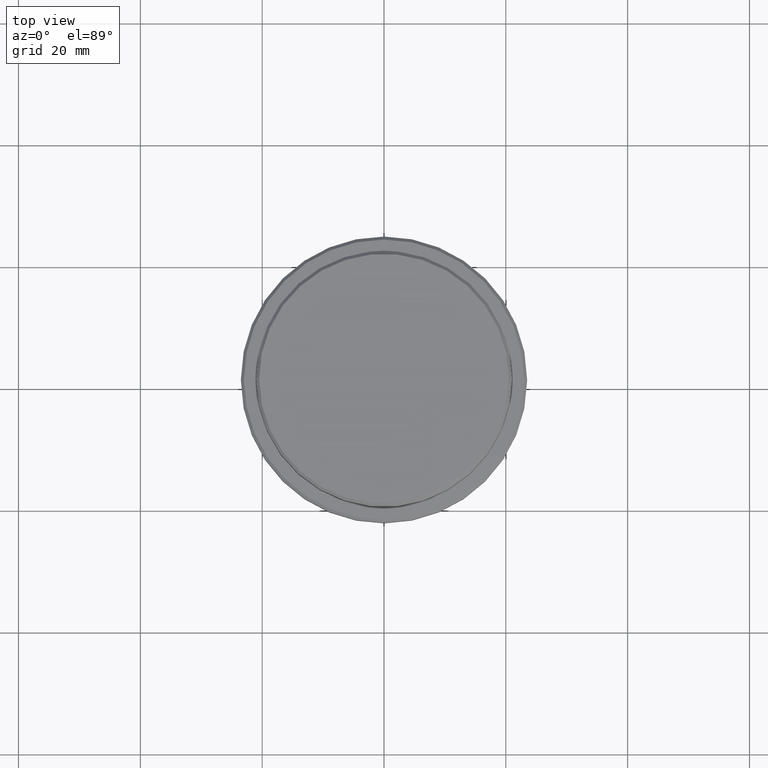
[diagram: clean part render]
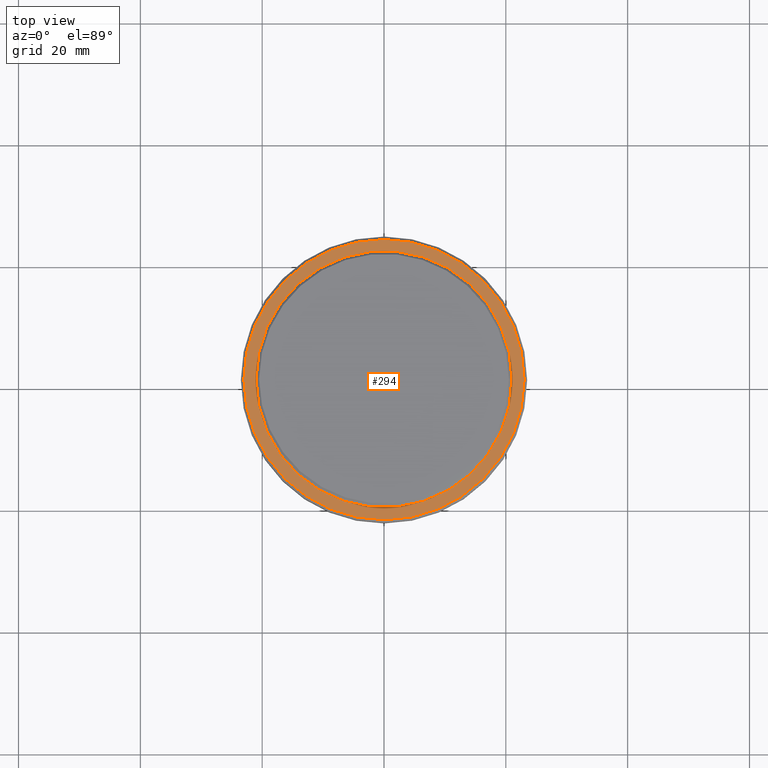
[diagram: same view with one face highlighted and labeled with its STEP entity id]
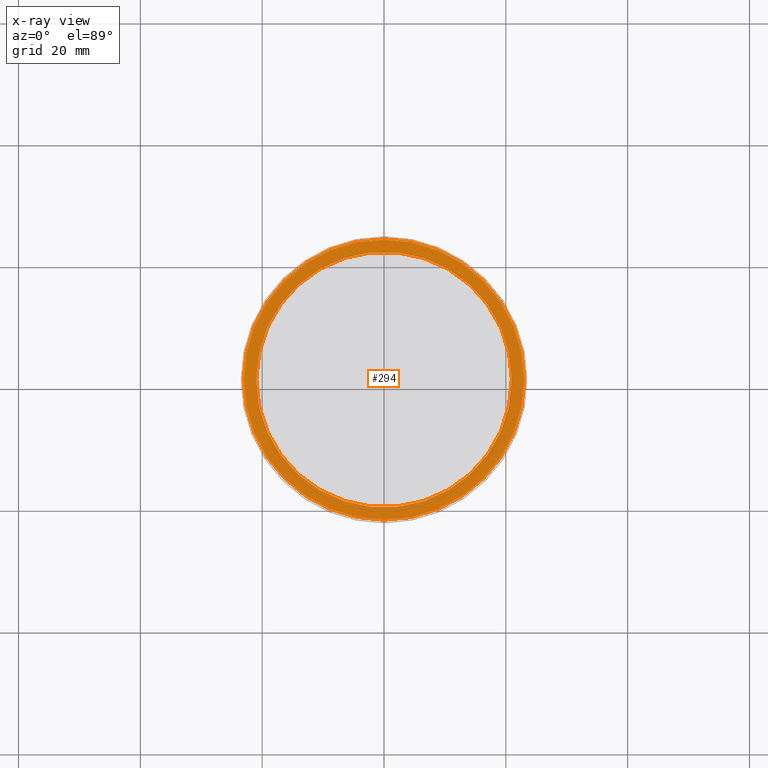
[diagram: x-ray of the same camera — body ghosted, the highlighted face saturated]
A machine part, top view. The second image highlights one B-rep face of the part: STEP entity #294.
The next image is the same camera in x-ray: the body ghosted, the highlighted face saturated — about 0% of this face is hidden behind the body in this view.
In plain terms, the highlighted planar face has unit normal (0, -0, 1).
Its self-contained STEP definition (entity closure, byte-faithful):
#1 = EDGE_CURVE ( 'NONE', #908, #1404, #927, .T. ) ;
#2 = AXIS2_PLACEMENT_3D ( 'NONE', #635, #1393, #413 ) ;
#78 = AXIS2_PLACEMENT_3D ( 'NONE', #98, #91, #528 ) ;
#91 = DIRECTION ( 'NONE',  ( -0.000000000000000000, -0.000000000000000000, 1.000000000000000000 ) ) ;
#98 = CARTESIAN_POINT ( 'NONE',  ( 0.000000000000000000, 0.000000000000000000, -9.000000000000000000 ) ) ;
#108 = CARTESIAN_POINT ( 'NONE',  ( 0.000000000000000000, 0.000000000000000000, -9.000000000000000000 ) ) ;
#132 = AXIS2_PLACEMENT_3D ( 'NONE', #108, #971, #1299 ) ;
#161 = EDGE_CURVE ( 'NONE', #1404, #908, #1109, .T. ) ;
#218 = DIRECTION ( 'NONE',  ( 0.000000000000000000, 0.000000000000000000, -1.000000000000000000 ) ) ;
#222 = CARTESIAN_POINT ( 'NONE',  ( 0.000000000000000000, 0.000000000000000000, -9.000000000000000000 ) ) ;
#275 = EDGE_CURVE ( 'NONE', #1395, #366, #688, .T. ) ;
#289 = EDGE_LOOP ( 'NONE', ( #1150, #585 ) ) ;
#294 = ADVANCED_FACE ( 'NONE', ( #1379, #398 ), #849, .T. ) ;
#316 = EDGE_LOOP ( 'NONE', ( #1170, #726 ) ) ;
#366 = VERTEX_POINT ( 'NONE', #1316 ) ;
#398 = FACE_BOUND ( 'NONE', #289, .T. ) ;
#413 = DIRECTION ( 'NONE',  ( 1.000000000000000000, 0.000000000000000000, 0.000000000000000000 ) ) ;
#507 = DIRECTION ( 'NONE',  ( 1.000000000000000000, 0.000000000000000000, 0.000000000000000000 ) ) ;
#528 = DIRECTION ( 'NONE',  ( 1.000000000000000000, 0.000000000000000000, 0.000000000000000000 ) ) ;
#532 = CARTESIAN_POINT ( 'NONE',  ( 20.99999999999999289, 0.000000000000000000, -9.000000000000000000 ) ) ;
#585 = ORIENTED_EDGE ( 'NONE', *, *, #161, .T. ) ;
#635 = CARTESIAN_POINT ( 'NONE',  ( 0.000000000000000000, 20.49999999999999645, -9.000000000000000000 ) ) ;
#688 = CIRCLE ( 'NONE', #78, 22.99999999999999645 ) ;
#703 = EDGE_CURVE ( 'NONE', #366, #1395, #1094, .T. ) ;
#726 = ORIENTED_EDGE ( 'NONE', *, *, #275, .T. ) ;
#767 = CARTESIAN_POINT ( 'NONE',  ( 0.000000000000000000, 0.000000000000000000, -9.000000000000000000 ) ) ;
#834 = CARTESIAN_POINT ( 'NONE',  ( 22.99999999999999645, 2.847303808017596139E-15, -9.000000000000000000 ) ) ;
#849 = PLANE ( 'NONE',  #2 ) ;
#908 = VERTEX_POINT ( 'NONE', #532 ) ;
#920 = DIRECTION ( 'NONE',  ( 0.000000000000000000, 0.000000000000000000, -1.000000000000000000 ) ) ;
#927 = CIRCLE ( 'NONE', #1091, 20.99999999999999289 ) ;
#971 = DIRECTION ( 'NONE',  ( -0.000000000000000000, -0.000000000000000000, 1.000000000000000000 ) ) ;
#1036 = AXIS2_PLACEMENT_3D ( 'NONE', #222, #920, #507 ) ;
#1091 = AXIS2_PLACEMENT_3D ( 'NONE', #767, #218, #1098 ) ;
#1094 = CIRCLE ( 'NONE', #132, 22.99999999999999645 ) ;
#1098 = DIRECTION ( 'NONE',  ( 1.000000000000000000, 0.000000000000000000, 0.000000000000000000 ) ) ;
#1109 = CIRCLE ( 'NONE', #1036, 20.99999999999999289 ) ;
#1150 = ORIENTED_EDGE ( 'NONE', *, *, #1, .T. ) ;
#1170 = ORIENTED_EDGE ( 'NONE', *, *, #703, .T. ) ;
#1282 = CARTESIAN_POINT ( 'NONE',  ( -20.99999999999999289, 2.571758278209440872E-15, -9.000000000000000000 ) ) ;
#1299 = DIRECTION ( 'NONE',  ( 1.000000000000000000, 0.000000000000000000, 0.000000000000000000 ) ) ;
#1316 = CARTESIAN_POINT ( 'NONE',  ( -22.99999999999999645, 0.000000000000000000, -9.000000000000000000 ) ) ;
#1379 = FACE_OUTER_BOUND ( 'NONE', #316, .T. ) ;
#1393 = DIRECTION ( 'NONE',  ( 0.000000000000000000, -0.000000000000000000, 1.000000000000000000 ) ) ;
#1395 = VERTEX_POINT ( 'NONE', #834 ) ;
#1404 = VERTEX_POINT ( 'NONE', #1282 ) ;